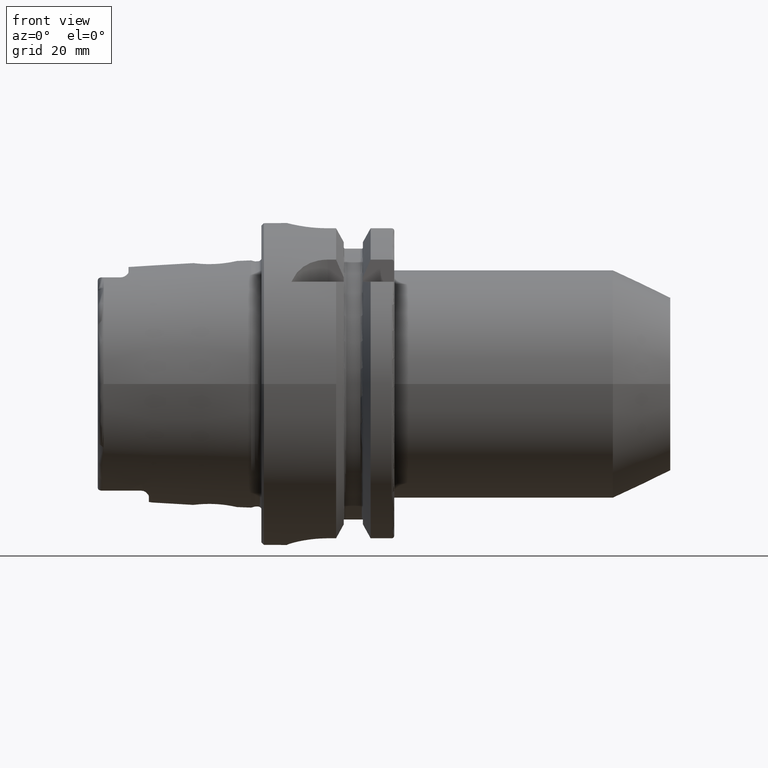
[diagram: clean part render]
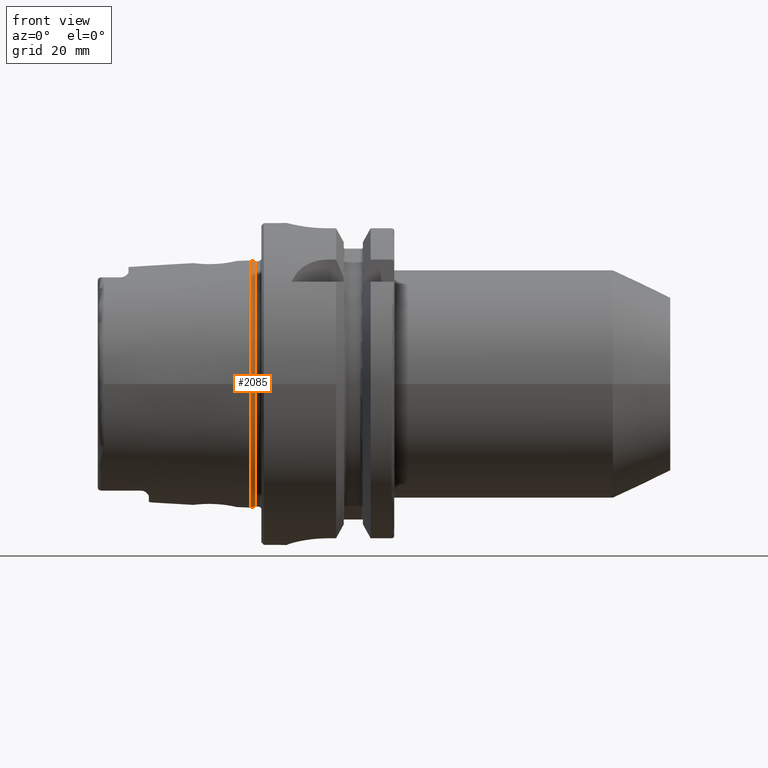
[diagram: same view with one face highlighted and labeled with its STEP entity id]
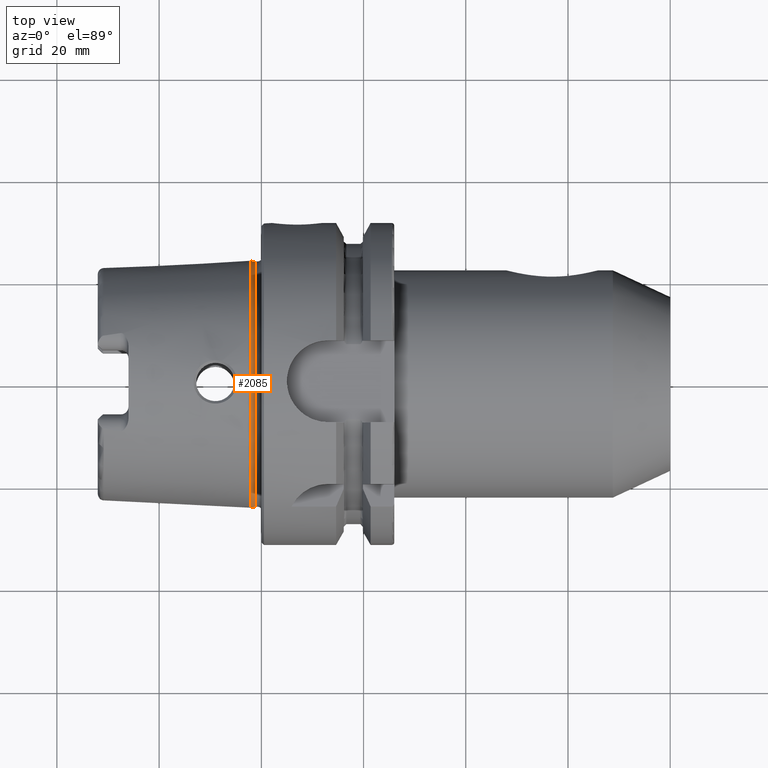
[diagram: same view with one face highlighted and labeled with its STEP entity id]
A machine part, front view. The second image highlights one B-rep face of the part: STEP entity #2085.
A second angle (top view) of the same face is appended — the face is thin or edge-on in the first view.
In plain terms, the highlighted conical surface has half-angle 15 deg.
Its self-contained STEP definition (entity closure, byte-faithful):
#332=FACE_OUTER_BOUND('',#465,.T.);
#465=EDGE_LOOP('',(#1938,#1939,#1940,#1941));
#576=LINE('',#4487,#686);
#686=VECTOR('',#2943,24.1204308617234);
#710=CIRCLE('',#2170,24.2204308617234);
#802=CIRCLE('',#2349,24.0204308617234);
#869=VERTEX_POINT('',#3423);
#1008=VERTEX_POINT('',#4485);
#1092=EDGE_CURVE('',#869,#869,#710,.T.);
#1319=EDGE_CURVE('',#1008,#1008,#802,.T.);
#1320=EDGE_CURVE('',#1008,#869,#576,.T.);
#1938=ORIENTED_EDGE('',*,*,#1319,.F.);
#1939=ORIENTED_EDGE('',*,*,#1320,.T.);
#1940=ORIENTED_EDGE('',*,*,#1092,.T.);
#1941=ORIENTED_EDGE('',*,*,#1320,.F.);
#1969=CONICAL_SURFACE('',#2348,24.1204308617234,0.261799387799149);
#2085=ADVANCED_FACE('',(#332),#1969,.T.);
#2170=AXIS2_PLACEMENT_3D('',#3424,#2509,#2510);
#2348=AXIS2_PLACEMENT_3D('',#4484,#2939,#2940);
#2349=AXIS2_PLACEMENT_3D('',#4486,#2941,#2942);
#2509=DIRECTION('center_axis',(1.,0.,0.));
#2510=DIRECTION('ref_axis',(0.,0.,-1.));
#2939=DIRECTION('center_axis',(-1.,0.,0.));
#2940=DIRECTION('ref_axis',(0.,1.,0.));
#2941=DIRECTION('center_axis',(1.,0.,0.));
#2942=DIRECTION('ref_axis',(0.,0.,-1.));
#2943=DIRECTION('',(-0.965925826289068,-0.25881904510252,-3.16961915143176E-17));
#3423=CARTESIAN_POINT('',(-2.,-24.2204308617234,-2.96614731287794E-15));
#3424=CARTESIAN_POINT('Origin',(-2.,0.,0.));
#4484=CARTESIAN_POINT('Origin',(-1.62679491924311,0.,0.));
#4485=CARTESIAN_POINT('',(-1.25358983848622,-24.0204308617234,-2.94165437689499E-15));
#4486=CARTESIAN_POINT('Origin',(-1.25358983848622,0.,0.));
#4487=CARTESIAN_POINT('',(-1.62679491924311,-24.1204308617234,-2.95390084488646E-15));